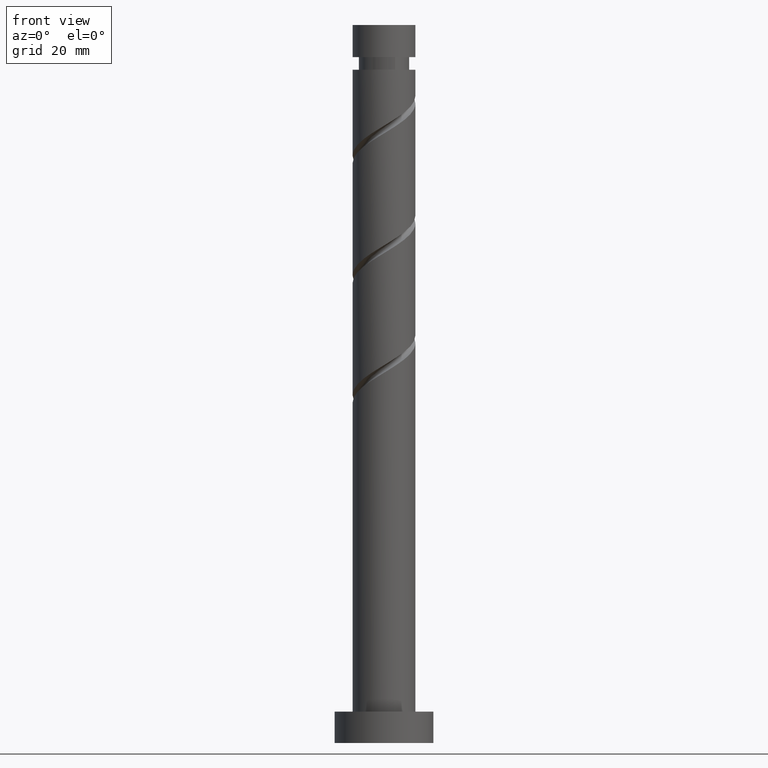
[diagram: clean part render]
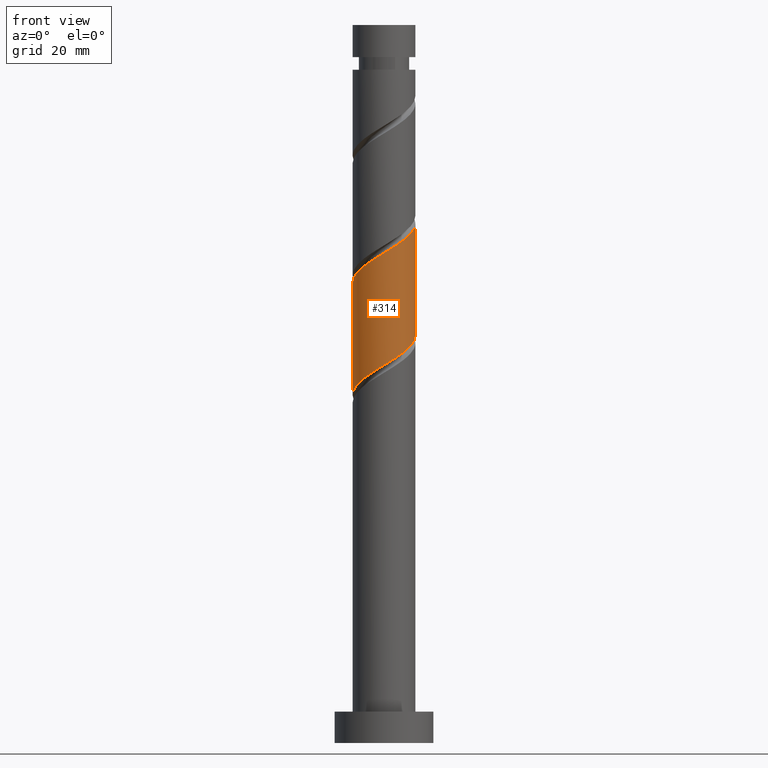
[diagram: same view with one face highlighted and labeled with its STEP entity id]
A machine part, front view. The second image highlights one B-rep face of the part: STEP entity #314.
In plain terms, the highlighted cylindrical surface (edge-blend (fillet) strip) has radius 7 mm, axis along (-0, -0, -1).
Its self-contained STEP definition (entity closure, byte-faithful):
#5 = CARTESIAN_POINT ( 'NONE',  ( 6.988417157977289129, -0.4025240689556711660, 90.63603225100882810 ) ) ;
#40 = CARTESIAN_POINT ( 'NONE',  ( 1.598920321740370243, -6.888859956343052815, 85.18148679646334642 ) ) ;
#44 = CARTESIAN_POINT ( 'NONE',  ( -1.598920321740372019, -6.888859956343062585, 108.2117898267664060 ) ) ;
#50 = CARTESIAN_POINT ( 'NONE',  ( -7.000000000000000000, 6.939964806422399820E-15, 77.54609279091576468 ) ) ;
#64 = VECTOR ( 'NONE', #1065, 1000.000000000000000 ) ;
#146 = CARTESIAN_POINT ( 'NONE',  ( 2.536944632521377141, -6.524102385119427971, 85.78754740252399813 ) ) ;
#172 = CARTESIAN_POINT ( 'NONE',  ( 7.000000000000000888, 8.572527594031474176E-16, 160.0000000000000000 ) ) ;
#215 = CARTESIAN_POINT ( 'NONE',  ( -6.818741294903301053, -1.582645618317776615, 78.51482012979671765 ) ) ;
#218 = CARTESIAN_POINT ( 'NONE',  ( 6.930542934050928139, -1.407306765654844805, 90.02997164494820481 ) ) ;
#226 = CARTESIAN_POINT ( 'NONE',  ( 7.000000000000001776, -0.2014286856667626691, 90.75732811953089652 ) ) ;
#231 = EDGE_CURVE ( 'NONE', #497, #674, #1439, .T. ) ;
#282 = CARTESIAN_POINT ( 'NONE',  ( -4.880647382969422132, -5.017896085324379918, 80.93906255403912553 ) ) ;
#296 = CARTESIAN_POINT ( 'NONE',  ( 0.4066633151437517579, -7.060280634755080165, 109.4239110388876099 ) ) ;
#311 = CARTESIAN_POINT ( 'NONE',  ( -6.930542934050940573, -1.407306765654844360, 103.3633049782815618 ) ) ;
#314 = ADVANCED_FACE ( 'NONE', ( #1234 ), #428, .T. ) ;
#328 = CARTESIAN_POINT ( 'NONE',  ( -2.536944632521383358, -6.524102385119434189, 107.6057292207058111 ) ) ;
#334 = CARTESIAN_POINT ( 'NONE',  ( 7.000000000000009770, 4.786182625118863513E-15, 115.8471838323140020 ) ) ;
#362 = CARTESIAN_POINT ( 'NONE',  ( -6.591191207902951099, -2.563032608892048536, 79.12088073585732673 ) ) ;
#368 = CARTESIAN_POINT ( 'NONE',  ( 5.602111921561425234, -4.316164931010011863, 113.0602746752512360 ) ) ;
#405 = CARTESIAN_POINT ( 'NONE',  ( -3.269242176566107272, -6.189673302441841329, 82.15118376616035789 ) ) ;
#428 = CYLINDRICAL_SURFACE ( 'NONE', #1265, 7.000000000000000888 ) ;
#445 = DIRECTION ( 'NONE',  ( -1.000000000000000000, 0.000000000000000000, 0.000000000000000000 ) ) ;
#452 = CARTESIAN_POINT ( 'NONE',  ( -5.069496247514102549, -4.930836185660775861, 105.7875474025239555 ) ) ;
#483 = ORIENTED_EDGE ( 'NONE', *, *, #1216, .T. ) ;
#492 = CARTESIAN_POINT ( 'NONE',  ( 4.880647382969427461, -5.017896085324388800, 112.4542140691906553 ) ) ;
#497 = VERTEX_POINT ( 'NONE', #334 ) ;
#505 = CARTESIAN_POINT ( 'NONE',  ( 5.069496247514097220, -4.930836185660769644, 87.60572922070578272 ) ) ;
#511 =( BOUNDED_CURVE ( )  B_SPLINE_CURVE ( 2, ( #1146, #226, #5, #218, #1250, #1389, #887, #505, #1008, #1492, #146, #40, #1406, #1032, #1304, #1560, #405, #1432, #282, #1643, #1236, #362, #215, #1269, #1626 ),
 .UNSPECIFIED., .F., .T. ) 
 B_SPLINE_CURVE_WITH_KNOTS ( ( 3, 2, 2, 2, 2, 2, 2, 2, 2, 2, 2, 2, 3 ),
 ( 0.8045252162417513286, 0.8068181818181817677, 0.8181818181818182323, 0.8295454545454545858, 0.8409090909090909394, 0.8522727272727272929, 0.8636363636363636465, 0.8750000000000000000, 0.8863636363636363535, 0.8977272727272727071, 0.9090909090909090606, 0.9204545454545454142, 0.9295252162417513286 ),
 .UNSPECIFIED. ) 
 CURVE ( )  GEOMETRIC_REPRESENTATION_ITEM ( )  RATIONAL_B_SPLINE_CURVE ( ( 0.9061101570135521310, 0.9072237824201343503, 0.9090909090909118362, 0.8998376744372142966, 0.9090909090909118362, 0.8998376744372142966, 0.9090909090909118362, 0.8998376744372142966, 0.9090909090909118362, 0.8998376744372142966, 0.9090909090909118362, 0.8998376744372142966, 0.9090909090909118362, 0.8998376744372142966, 0.9090909090909118362, 0.8998376744372142966, 0.9090909090909118362, 0.8998376744372142966, 0.9090909090909118362, 0.8998376744372142966, 0.9090909090909118362, 0.8998376744372142966, 0.9090909090909118362, 0.9017048011079917824, 0.9061101570135521310 ) ) 
 REPRESENTATION_ITEM ( '' )  );
#555 = DIRECTION ( 'NONE',  ( -0.000000000000000000, -0.000000000000000000, -1.000000000000000000 ) ) ;
#595 = CARTESIAN_POINT ( 'NONE',  ( 4.159182844377432353, -5.719627239638761296, 111.8481534631300320 ) ) ;
#640 = CARTESIAN_POINT ( 'NONE',  ( 7.000000000000000000, -8.435646876772053247E-15, 90.87942612424909328 ) ) ;
#656 = ORIENTED_EDGE ( 'NONE', *, *, #231, .F. ) ;
#674 = VERTEX_POINT ( 'NONE', #640 ) ;
#677 = CARTESIAN_POINT ( 'NONE',  ( -6.253323115207297889, -3.302860534475442034, 104.5754261904027373 ) ) ;
#714 = CARTESIAN_POINT ( 'NONE',  ( 6.818741294903309047, -1.582645618317779945, 114.8784564934330774 ) ) ;
#726 = VERTEX_POINT ( 'NONE', #1017 ) ;
#795 = EDGE_LOOP ( 'NONE', ( #656, #999, #483, #804 ) ) ;
#804 = ORIENTED_EDGE ( 'NONE', *, *, #1590, .F. ) ;
#826 = CARTESIAN_POINT ( 'NONE',  ( -0.5961285032983101306, -6.974570295549072263, 108.8178504328270009 ) ) ;
#843 = CARTESIAN_POINT ( 'NONE',  ( 0.000000000000000000, 0.000000000000000000, 160.0000000000000000 ) ) ;
#887 = CARTESIAN_POINT ( 'NONE',  ( 5.661409681360692225, -4.116848360068104284, 88.21178982676636338 ) ) ;
#943 = EDGE_CURVE ( 'NONE', #726, #497, #972, .T. ) ;
#953 = CARTESIAN_POINT ( 'NONE',  ( -7.000000000000009770, -5.145146322002778474E-15, 102.5138504989806449 ) ) ;
#971 = CARTESIAN_POINT ( 'NONE',  ( -4.272232595408246958, -5.545090499778290827, 106.3936080085845788 ) ) ;
#972 =( BOUNDED_CURVE ( )  B_SPLINE_CURVE ( 2, ( #953, #1101, #1464, #311, #1192, #677, #1611, #452, #971, #1476, #328, #44, #826, #296, #1200, #1654, #1648, #595, #492, #368, #1115, #1383, #714, #1629, #1640 ),
 .UNSPECIFIED., .F., .T. ) 
 B_SPLINE_CURVE_WITH_KNOTS ( ( 3, 2, 2, 2, 2, 2, 2, 2, 2, 2, 2, 2, 3 ),
 ( 0.3045252162417512731, 0.3068181818181817677, 0.3181818181818182323, 0.3295454545454545858, 0.3409090909090909394, 0.3522727272727272929, 0.3636363636363636465, 0.3750000000000000000, 0.3863636363636363535, 0.3977272727272727071, 0.4090909090909090606, 0.4204545454545454142, 0.4295252162417513841 ),
 .UNSPECIFIED. ) 
 CURVE ( )  GEOMETRIC_REPRESENTATION_ITEM ( )  RATIONAL_B_SPLINE_CURVE ( ( 0.9061101570135582373, 0.9072237824201403456, 0.9090909090909178314, 0.8998376744372202918, 0.9090909090909178314, 0.8998376744372202918, 0.9090909090909178314, 0.8998376744372202918, 0.9090909090909178314, 0.8998376744372202918, 0.9090909090909178314, 0.8998376744372202918, 0.9090909090909178314, 0.8998376744372202918, 0.9090909090909178314, 0.8998376744372202918, 0.9090909090909178314, 0.8998376744372202918, 0.9090909090909178314, 0.8998376744372202918, 0.9090909090909178314, 0.8998376744372202918, 0.9090909090909178314, 0.9017048011079976666, 0.9061101570135581262 ) ) 
 REPRESENTATION_ITEM ( '' )  );
#999 = ORIENTED_EDGE ( 'NONE', *, *, #943, .F. ) ;
#1008 = CARTESIAN_POINT ( 'NONE',  ( 4.272232595408238964, -5.545090499778284610, 86.99966861464518786 ) ) ;
#1017 = CARTESIAN_POINT ( 'NONE',  ( -7.000000000000009770, -5.145146322002778474E-15, 102.5138504989806449 ) ) ;
#1032 = CARTESIAN_POINT ( 'NONE',  ( -0.4066633151437540894, -7.060280634755069507, 83.96936558434215669 ) ) ;
#1065 = DIRECTION ( 'NONE',  ( -0.000000000000000000, -0.000000000000000000, -1.000000000000000000 ) ) ;
#1101 = CARTESIAN_POINT ( 'NONE',  ( -7.000000000000010658, -0.2014286856667549808, 102.6359485036989128 ) ) ;
#1115 = CARTESIAN_POINT ( 'NONE',  ( 6.096651564732192163, -3.439598769951033752, 113.6663352813118593 ) ) ;
#1146 = CARTESIAN_POINT ( 'NONE',  ( 7.000000000000000000, -8.435646876772053247E-15, 90.87942612424907907 ) ) ;
#1192 = CARTESIAN_POINT ( 'NONE',  ( -6.591933024629119231, -2.355083650065143530, 103.9693655843421993 ) ) ;
#1200 = CARTESIAN_POINT ( 'NONE',  ( 1.392982411949269750, -6.860000000000010978, 110.0299716449482048 ) ) ;
#1216 = EDGE_CURVE ( 'NONE', #726, #1508, #1287, .T. ) ;
#1234 = FACE_OUTER_BOUND ( 'NONE', #795, .T. ) ;
#1236 = CARTESIAN_POINT ( 'NONE',  ( -6.096651564732185946, -3.439598769951026203, 79.72694134191793580 ) ) ;
#1250 = CARTESIAN_POINT ( 'NONE',  ( 6.591933024629107685, -2.355083650065141754, 89.42391103888760995 ) ) ;
#1265 = AXIS2_PLACEMENT_3D ( 'NONE', #843, #555, #445 ) ;
#1269 = CARTESIAN_POINT ( 'NONE',  ( -7.000000000000000888, -0.8017024916958560565, 78.03205274388704993 ) ) ;
#1287 = LINE ( 'NONE', #1527, #1519 ) ;
#1304 = CARTESIAN_POINT ( 'NONE',  ( -1.392982411949270638, -6.860000000000000320, 83.36330497828154762 ) ) ;
#1383 = CARTESIAN_POINT ( 'NONE',  ( 6.591191207902958205, -2.563032608892052977, 114.2723958873724257 ) ) ;
#1389 = CARTESIAN_POINT ( 'NONE',  ( 6.253323115207287231, -3.302860534475439369, 88.81785043282700087 ) ) ;
#1406 = CARTESIAN_POINT ( 'NONE',  ( 0.5961285032983064669, -6.974570295549062493, 84.57542619040276577 ) ) ;
#1425 = DIRECTION ( 'NONE',  ( -0.000000000000000000, -0.000000000000000000, -1.000000000000000000 ) ) ;
#1432 = CARTESIAN_POINT ( 'NONE',  ( -4.159182844377426136, -5.719627239638754190, 81.54512316009972039 ) ) ;
#1439 = LINE ( 'NONE', #172, #64 ) ;
#1464 = CARTESIAN_POINT ( 'NONE',  ( -6.988417157977300675, -0.4025240689556689455, 102.7572443722209670 ) ) ;
#1476 = CARTESIAN_POINT ( 'NONE',  ( -3.474968943302391367, -6.159344813895805792, 106.9996686146451879 ) ) ;
#1492 = CARTESIAN_POINT ( 'NONE',  ( 3.474968943302383817, -6.159344813895797799, 86.39360800858456457 ) ) ;
#1508 = VERTEX_POINT ( 'NONE', #50 ) ;
#1519 = VECTOR ( 'NONE', #1425, 1000.000000000000000 ) ;
#1527 = CARTESIAN_POINT ( 'NONE',  ( -7.000000000000000888, 0.000000000000000000, 160.0000000000000000 ) ) ;
#1560 = CARTESIAN_POINT ( 'NONE',  ( -2.379301508754786632, -6.659719365244929357, 82.75724437222095276 ) ) ;
#1590 = EDGE_CURVE ( 'NONE', #674, #1508, #511, .T. ) ;
#1611 = CARTESIAN_POINT ( 'NONE',  ( -5.661409681360700219, -4.116848360068110502, 105.1814867964633891 ) ) ;
#1626 = CARTESIAN_POINT ( 'NONE',  ( -7.000000000000000000, 6.939964806422399820E-15, 77.54609279091576468 ) ) ;
#1629 = CARTESIAN_POINT ( 'NONE',  ( 7.000000000000013323, -0.8017024916958535030, 115.3612238793426883 ) ) ;
#1640 = CARTESIAN_POINT ( 'NONE',  ( 7.000000000000008882, 4.786182625118863513E-15, 115.8471838323140020 ) ) ;
#1643 = CARTESIAN_POINT ( 'NONE',  ( -5.602111921561416352, -4.316164931010002981, 80.33300194797851645 ) ) ;
#1648 = CARTESIAN_POINT ( 'NONE',  ( 3.269242176566109048, -6.189673302441854652, 111.2420928570694372 ) ) ;
#1654 = CARTESIAN_POINT ( 'NONE',  ( 2.379301508754787520, -6.659719365244943567, 110.6360322510087997 ) ) ;